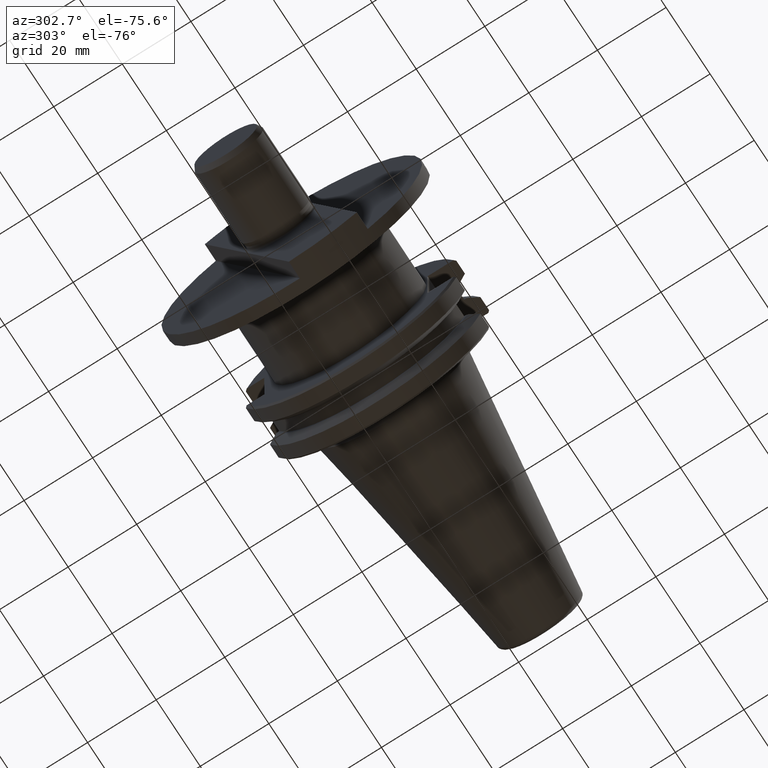
[diagram: clean part render]
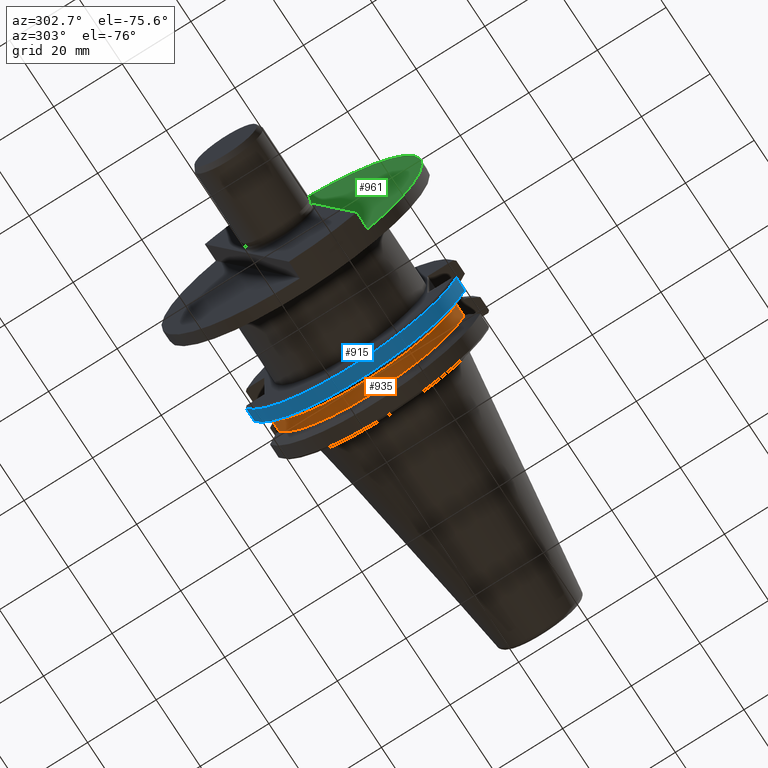
[diagram: same view with three faces highlighted in distinct colors, each labeled with its STEP entity id]
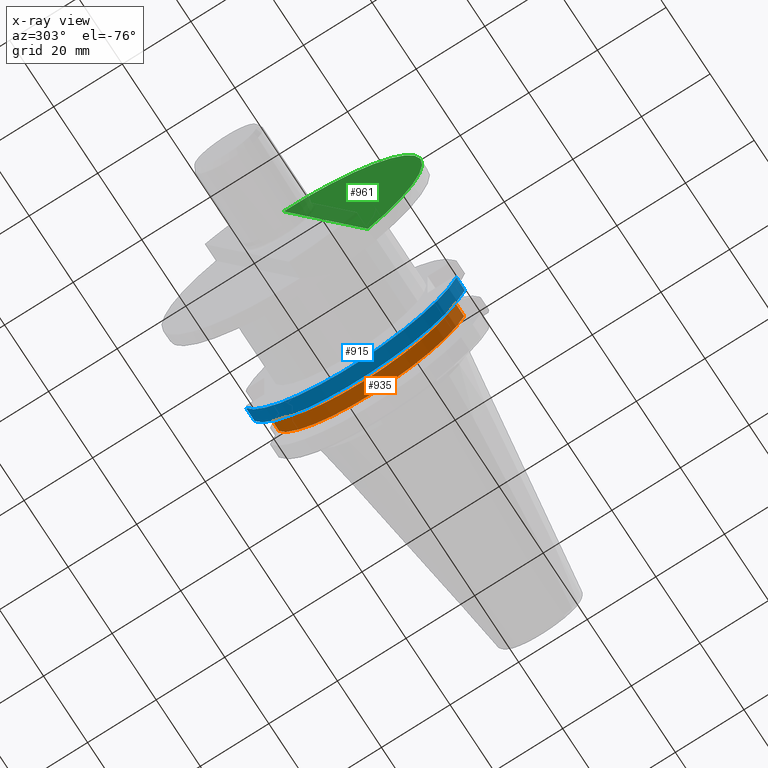
[diagram: x-ray of the same camera — body ghosted, the three highlighted faces saturated]
A machine part, auxiliary view with three faces highlighted in distinct colors.
The next image is the same camera in x-ray (body ghosted, the three faces saturated) — at least one of them is partly hidden behind the body in this view.
Their STEP definitions:

[orange] entity #935 — the highlighted cylindrical surface (partial cylindrical patch) has radius 28.1815 mm, axis along (1, 0, 0).
#37=CYLINDRICAL_SURFACE('',#1051,28.1815);
#63=CIRCLE('',#1008,28.1815);
#83=CIRCLE('',#1050,28.1815);
#148=FACE_OUTER_BOUND('',#209,.T.);
#209=EDGE_LOOP('',(#750,#751,#752,#753));
#271=LINE('',#1494,#331);
#273=LINE('',#1503,#333);
#331=VECTOR('',#1139,3.835);
#333=VECTOR('',#1149,3.835);
#385=VERTEX_POINT('',#1436);
#395=VERTEX_POINT('',#1492);
#396=VERTEX_POINT('',#1496);
#398=VERTEX_POINT('',#1502);
#485=EDGE_CURVE('',#385,#395,#271,.T.);
#488=EDGE_CURVE('',#385,#396,#63,.T.);
#489=EDGE_CURVE('',#398,#396,#273,.T.);
#549=EDGE_CURVE('',#398,#395,#83,.T.);
#750=ORIENTED_EDGE('',*,*,#485,.T.);
#751=ORIENTED_EDGE('',*,*,#549,.F.);
#752=ORIENTED_EDGE('',*,*,#489,.T.);
#753=ORIENTED_EDGE('',*,*,#488,.F.);
#935=ADVANCED_FACE('',(#148),#37,.T.);
#1008=AXIS2_PLACEMENT_3D('',#1500,#1145,#1146);
#1050=AXIS2_PLACEMENT_3D('',#1730,#1258,#1259);
#1051=AXIS2_PLACEMENT_3D('',#1731,#1260,#1261);
#1139=DIRECTION('',(1.,0.,0.));
#1145=DIRECTION('center_axis',(-1.,0.,0.));
#1146=DIRECTION('ref_axis',(0.,0.95682354362477,-0.290669410783691));
#1149=DIRECTION('',(-1.,0.,0.));
#1258=DIRECTION('center_axis',(1.,0.,0.));
#1259=DIRECTION('ref_axis',(0.,-0.95682354362477,-0.290669410783691));
#1260=DIRECTION('center_axis',(1.,0.,0.));
#1261=DIRECTION('ref_axis',(0.,-1.,0.));
#1436=CARTESIAN_POINT('',(28.948,26.96472269466,-8.1915));
#1492=CARTESIAN_POINT('',(32.783,26.96472269466,-8.1915));
#1494=CARTESIAN_POINT('',(28.948,26.96472269466,-8.1915));
#1496=CARTESIAN_POINT('',(28.948,-26.96472269466,-8.1915));
#1500=CARTESIAN_POINT('Origin',(28.948,0.,0.));
#1502=CARTESIAN_POINT('',(32.783,-26.96472269466,-8.1915));
#1503=CARTESIAN_POINT('',(32.783,-26.96472269466,-8.1915));
#1730=CARTESIAN_POINT('Origin',(32.783,0.,0.));
#1731=CARTESIAN_POINT('Origin',(30.8655,0.,0.));

[blue] entity #915 — the highlighted cylindrical surface (partial cylindrical patch) has radius 31.75 mm, axis along (-1, 0, 0).
#32=CYLINDRICAL_SURFACE('',#1012,31.75);
#64=CIRCLE('',#1011,31.75);
#65=CIRCLE('',#1013,31.75);
#128=FACE_OUTER_BOUND('',#186,.T.);
#186=EDGE_LOOP('',(#644,#645,#646,#647));
#265=LINE('',#1450,#325);
#279=LINE('',#1548,#339);
#325=VECTOR('',#1133,3.88932990989502);
#339=VECTOR('',#1155,3.88932990948002);
#386=VERTEX_POINT('',#1438);
#387=VERTEX_POINT('',#1449);
#406=VERTEX_POINT('',#1536);
#407=VERTEX_POINT('',#1547);
#476=EDGE_CURVE('',#387,#386,#265,.T.);
#498=EDGE_CURVE('',#407,#406,#279,.T.);
#500=EDGE_CURVE('',#407,#386,#64,.T.);
#501=EDGE_CURVE('',#387,#406,#65,.T.);
#644=ORIENTED_EDGE('',*,*,#501,.F.);
#645=ORIENTED_EDGE('',*,*,#476,.T.);
#646=ORIENTED_EDGE('',*,*,#500,.F.);
#647=ORIENTED_EDGE('',*,*,#498,.T.);
#915=ADVANCED_FACE('',(#128),#32,.T.);
#1011=AXIS2_PLACEMENT_3D('',#1560,#1158,#1159);
#1012=AXIS2_PLACEMENT_3D('',#1561,#1160,#1161);
#1013=AXIS2_PLACEMENT_3D('',#1562,#1162,#1163);
#1133=DIRECTION('',(0.999999999999995,-2.55205483914199E-8,-9.55680065679395E-8));
#1155=DIRECTION('',(-0.999999999999995,-2.55237272048599E-8,9.55799051954895E-8));
#1158=DIRECTION('center_axis',(1.,0.,0.));
#1159=DIRECTION('ref_axis',(0.,-0.96614491666623,-0.258000000000008));
#1160=DIRECTION('center_axis',(-1.,0.,0.));
#1161=DIRECTION('ref_axis',(0.,1.,0.));
#1162=DIRECTION('center_axis',(-1.,0.,0.));
#1163=DIRECTION('ref_axis',(0.,0.96614491666623,-0.258000000000008));
#1438=CARTESIAN_POINT('',(27.3393332120395,30.6751009778168,-8.19150055389349));
#1449=CARTESIAN_POINT('',(23.45,30.67510110415,-8.1915));
#1450=CARTESIAN_POINT('',(23.45,30.67510110415,-8.1915));
#1536=CARTESIAN_POINT('',(23.45,-30.67510110415,-8.1915));
#1547=CARTESIAN_POINT('',(27.3393332120371,-30.6751009778011,-8.19150055396294));
#1548=CARTESIAN_POINT('',(27.33932990948,-30.67510100488,-8.191500371742));
#1560=CARTESIAN_POINT('Origin',(27.33933323092,0.,0.));
#1561=CARTESIAN_POINT('Origin',(30.8875,0.,0.));
#1562=CARTESIAN_POINT('Origin',(23.45,0.,0.));

[green] entity #961 — the highlighted planar face has unit normal (1, 0, 0).
#109=CIRCLE('',#1098,38.);
#174=FACE_OUTER_BOUND('',#240,.T.);
#240=EDGE_LOOP('',(#857,#858));
#319=LINE('',#1833,#379);
#379=VECTOR('',#1389,73.0410843293024);
#458=VERTEX_POINT('',#1809);
#459=VERTEX_POINT('',#1811);
#586=EDGE_CURVE('',#459,#458,#109,.T.);
#597=EDGE_CURVE('',#459,#458,#319,.T.);
#857=ORIENTED_EDGE('',*,*,#586,.T.);
#858=ORIENTED_EDGE('',*,*,#597,.F.);
#909=PLANE('',#1107);
#961=ADVANCED_FACE('',(#174),#909,.F.);
#1098=AXIS2_PLACEMENT_3D('',#1812,#1365,#1366);
#1107=AXIS2_PLACEMENT_3D('',#1834,#1390,#1391);
#1365=DIRECTION('center_axis',(-1.,0.,0.));
#1366=DIRECTION('ref_axis',(0.,-0.58286491532567,-0.812569068130458));
#1389=DIRECTION('',(0.,0.335646513186189,0.941988013822869));
#1390=DIRECTION('center_axis',(1.,0.,0.));
#1391=DIRECTION('ref_axis',(0.,-0.335646513186189,-0.941988013822869));
#1809=CARTESIAN_POINT('',(-3.499999999998,2.367118492095,37.92620136587));
#1811=CARTESIAN_POINT('',(-3.499999999998,-22.14886678237,-30.87762458896));
#1812=CARTESIAN_POINT('Origin',(-3.499999999998,0.,0.));
#1833=CARTESIAN_POINT('',(-3.499999999998,-22.14886678237,-30.87762458896));
#1834=CARTESIAN_POINT('Origin',(-3.499999999998,0.,0.));